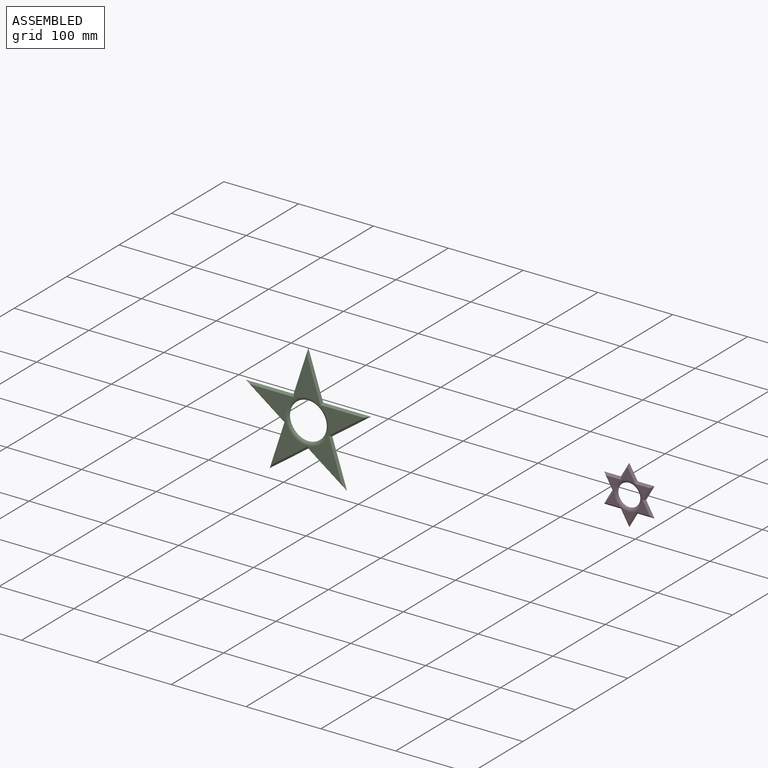
[diagram: assembled view]
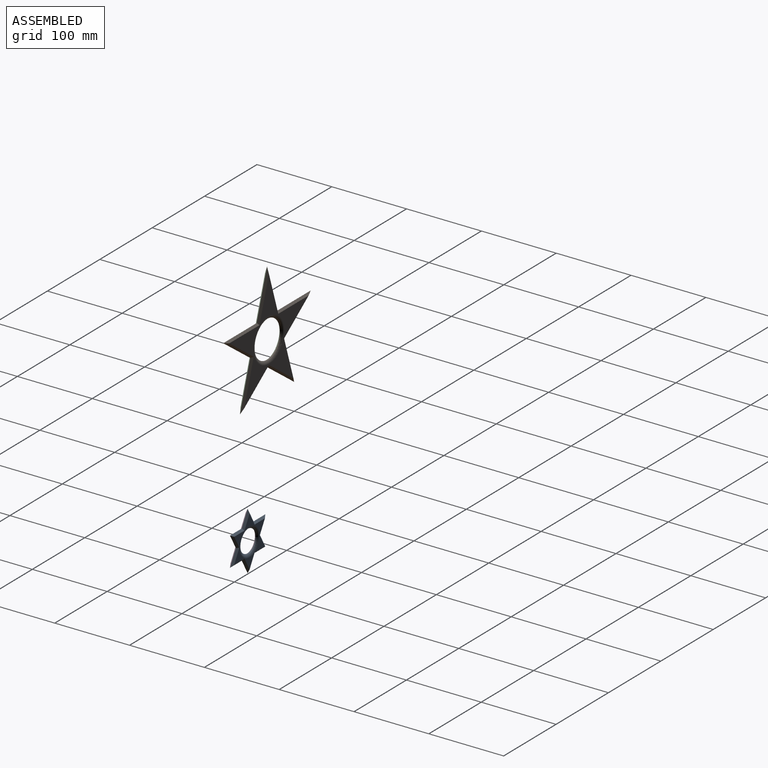
[diagram: assembled view, second angle]
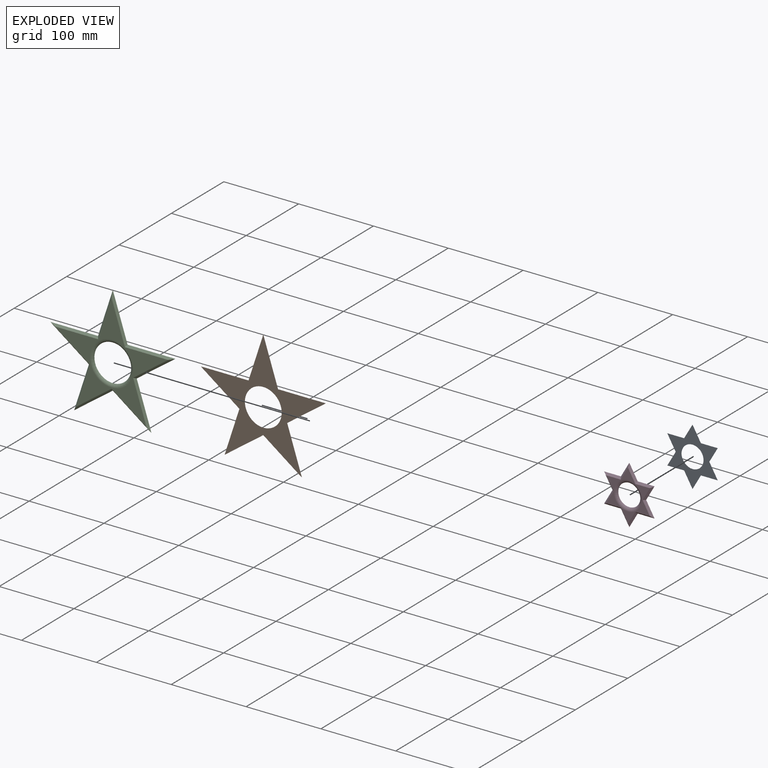
[diagram: exploded view]
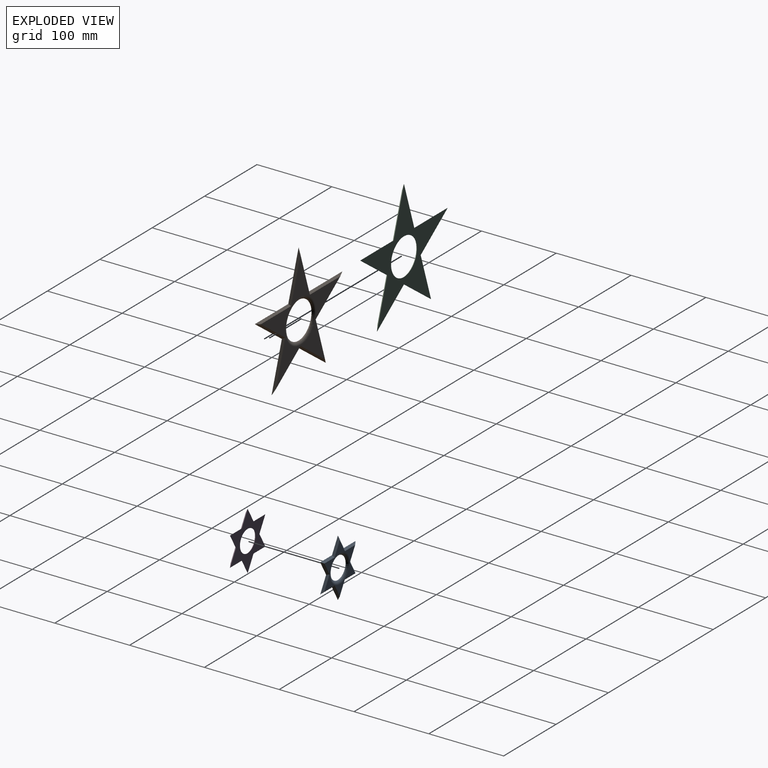
[diagram: exploded view, second angle]
ASSEMBLY  parts=4 mates=2
PART A: 15 faces, bbox 67.4x5.1x77.8 mm
  f0: plane 67.67x58.6mm, normal (0,-1,0), area 832.9mm2, adj f2,f3,f4,f5,f6,f7,f8,f9
  f1: plane 77.83x67.4mm, normal (0,1,0), area 1941mm2, adj f2,f3,f4,f5,f6,f7,f8,f9
  f2: plane 22x11.23mm, normal (0.61,-0.71,-0.35), area 75.4mm2, adj f0,f1,f3,f4
  f3: plane 22x11.23mm, normal (-0.61,-0.71,-0.35), area 75.4mm2, adj f0,f1,f2,f5
  f4: plane 23.93x2.54mm, normal (0,-0.71,-0.71), area 75.4mm2, adj f0,f1,f2,f6
  f5: plane 23.93x2.54mm, normal (0,-0.71,-0.71), area 75.4mm2, adj f0,f1,f3,f7
  f6: plane 19.46x14.17mm, normal (0.61,-0.71,0.35), area 75.4mm2, adj f0,f1,f4,f8
  f7: plane 19.46x14.17mm, normal (-0.61,-0.71,0.35), area 75.4mm2, adj f0,f1,f5,f9
  f8: plane 19.46x14.17mm, normal (0.61,-0.71,-0.35), area 75.4mm2, adj f0,f1,f6,f10
  f9: plane 19.46x14.17mm, normal (-0.61,-0.71,-0.35), area 75.4mm2, adj f0,f1,f7,f11
  f10: plane 23.93x2.54mm, normal (0,-0.71,0.71), area 75.4mm2, adj f0,f1,f8,f12
  f11: plane 23.93x2.54mm, normal (0,-0.71,0.71), area 75.4mm2, adj f0,f1,f9,f13
  f12: plane 22x11.23mm, normal (0.61,-0.71,0.35), area 75.4mm2, adj f0,f1,f10,f13
  f13: plane 22x11.23mm, normal (-0.61,-0.71,0.35), area 75.4mm2, adj f0,f1,f11,f12
  f14: torus R=19.13mm, axis (0,-1,0), area 558.4mm2, adj f0,f1
PART B: 13 faces, bbox 167.2x5.1x159.1 mm
  f0: plane 151.6x144.18mm, normal (0,-1,0), area 4483.3mm2, adj f2,f3,f4,f5,f6,f7,f8,f9
  f1: plane 167.24x159.05mm, normal (0,1,0), area 6771.7mm2, adj f2,f3,f4,f5,f6,f7,f8,f9
  f2: plane 61.72x22.73mm, normal (0.67,-0.71,0.22), area 218.7mm2, adj f0,f1,f3,f4
  f3: plane 54.66x37.55mm, normal (0.42,-0.71,-0.57), area 218.7mm2, adj f0,f1,f2,f5
  f4: plane 51.68x40.69mm, normal (-0.42,-0.71,-0.57), area 218.7mm2, adj f0,f1,f2,f6
  f5: plane 65.72x2.54mm, normal (0,-0.71,0.71), area 218.7mm2, adj f0,f1,f3,f7
  f6: plane 51.68x40.69mm, normal (0.42,-0.71,-0.57), area 218.7mm2, adj f0,f1,f4,f8
  f7: plane 63.29x19.74mm, normal (0.67,-0.71,0.22), area 218.7mm2, adj f0,f1,f5,f9
  f8: plane 61.72x22.73mm, normal (-0.67,-0.71,0.22), area 218.7mm2, adj f0,f1,f6,f10
  f9: plane 63.29x19.74mm, normal (-0.67,-0.71,0.22), area 218.7mm2, adj f0,f1,f7,f11
  f10: plane 54.66x37.55mm, normal (-0.42,-0.71,-0.57), area 218.7mm2, adj f0,f1,f8,f11
  f11: plane 65.72x2.54mm, normal (0,-0.71,0.71), area 218.7mm2, adj f0,f1,f9,f10
  f12: torus R=29.03mm, axis (0,-1,0), area 889.2mm2, adj f0,f1
PART C: same geometry as B
PART D: same geometry as A
PLACE A rot(axis=(0,0,1),180deg) t=(-13.64,-91.71,56.06)mm
PLACE B rot(axis=(0,0,1),180deg) t=(-313.62,-275.88,135.91)mm
PLACE C t=(-313.62,-275.88,135.91)mm
PLACE D t=(-13.64,-91.71,56.06)mm
MATE parallel A.f14 <-> D.f14  axis (0,-1,0) through (-13.64,-91.71,56.06)mm
MATE parallel B.f12 <-> C.f12  axis (0,-1,0) through (-313.62,-275.88,135.91)mm
